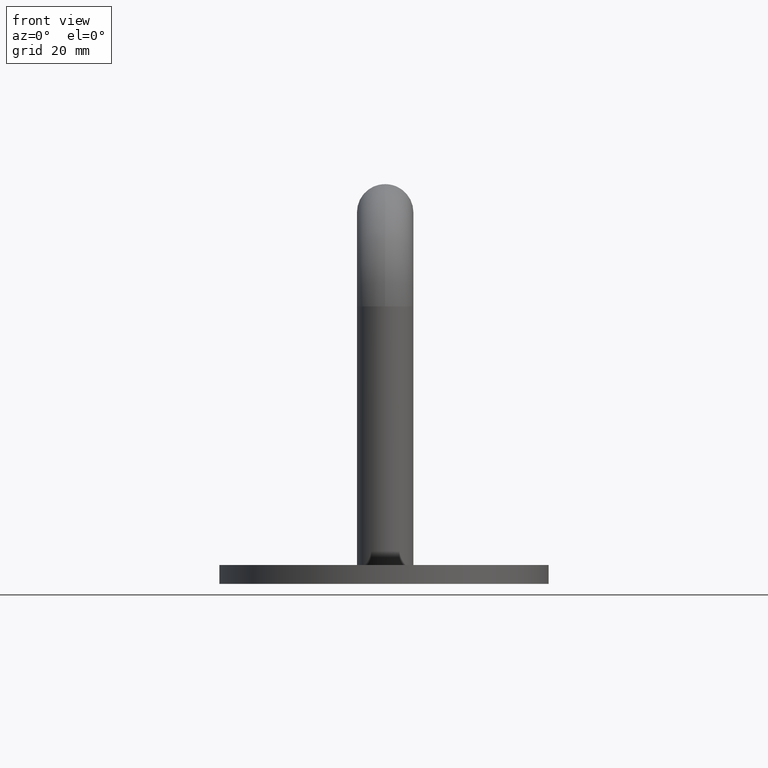
[diagram: clean part render]
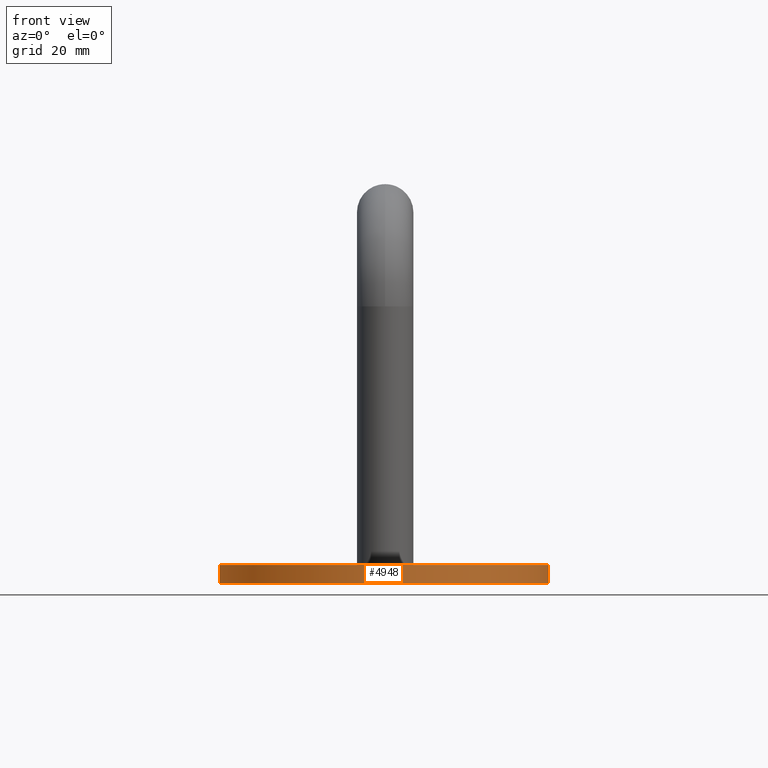
[diagram: same view with one face highlighted and labeled with its STEP entity id]
A machine part, front view. The second image highlights one B-rep face of the part: STEP entity #4948.
In plain terms, the highlighted cylindrical surface (partial cylindrical patch) has radius 35 mm, axis along (-0, -0, -1).
Its self-contained STEP definition (entity closure, byte-faithful):
#84 = CIRCLE ( 'NONE', #12528, 35.00000000000000700 ) ;
#282 = CARTESIAN_POINT ( 'NONE',  ( -35.25000000000004300, 0.0000000000000000000, 0.0000000000000000000 ) ) ;
#1248 = AXIS2_PLACEMENT_3D ( 'NONE', #12040, #8501, #10740 ) ;
#1822 = ORIENTED_EDGE ( 'NONE', *, *, #8297, .F. ) ;
#1907 = EDGE_LOOP ( 'NONE', ( #1822, #13810, #10155, #1982 ) ) ;
#1928 = DIRECTION ( 'NONE',  ( 0.0000000000000000000, 0.0000000000000000000, 1.000000000000000000 ) ) ;
#1982 = ORIENTED_EDGE ( 'NONE', *, *, #7634, .T. ) ;
#2017 = DIRECTION ( 'NONE',  ( -1.000000000000000000, 0.0000000000000000000, 0.0000000000000000000 ) ) ;
#2135 = CARTESIAN_POINT ( 'NONE',  ( -35.25000000000004300, 0.0000000000000000000, 4.000000000000000000 ) ) ;
#2532 = LINE ( 'NONE', #2135, #11554 ) ;
#3499 = AXIS2_PLACEMENT_3D ( 'NONE', #11141, #12114, #2017 ) ;
#3955 = FACE_OUTER_BOUND ( 'NONE', #1907, .T. ) ;
#4875 = CARTESIAN_POINT ( 'NONE',  ( 34.74999999999997900, 4.286263797015737300E-015, 0.0000000000000000000 ) ) ;
#4948 = ADVANCED_FACE ( 'NONE', ( #3955 ), #13528, .T. ) ;
#6420 = DIRECTION ( 'NONE',  ( 1.000000000000000000, 0.0000000000000000000, 0.0000000000000000000 ) ) ;
#7505 = VERTEX_POINT ( 'NONE', #4875 ) ;
#7634 = EDGE_CURVE ( 'NONE', #10209, #7505, #84, .T. ) ;
#8297 = EDGE_CURVE ( 'NONE', #12734, #7505, #13880, .T. ) ;
#8402 = CARTESIAN_POINT ( 'NONE',  ( 34.74999999999997900, 4.286263797015737300E-015, 4.000000000000000000 ) ) ;
#8501 = DIRECTION ( 'NONE',  ( 0.0000000000000000000, 0.0000000000000000000, 1.000000000000000000 ) ) ;
#8676 = CARTESIAN_POINT ( 'NONE',  ( -0.2500000000000349200, 0.0000000000000000000, 0.0000000000000000000 ) ) ;
#9142 = EDGE_CURVE ( 'NONE', #9540, #12734, #10821, .T. ) ;
#9421 = EDGE_CURVE ( 'NONE', #9540, #10209, #2532, .T. ) ;
#9540 = VERTEX_POINT ( 'NONE', #12786 ) ;
#10155 = ORIENTED_EDGE ( 'NONE', *, *, #9421, .T. ) ;
#10209 = VERTEX_POINT ( 'NONE', #282 ) ;
#10740 = DIRECTION ( 'NONE',  ( 1.000000000000000000, 0.0000000000000000000, 0.0000000000000000000 ) ) ;
#10821 = CIRCLE ( 'NONE', #1248, 35.00000000000000700 ) ;
#11141 = CARTESIAN_POINT ( 'NONE',  ( -0.2500000000000349200, 0.0000000000000000000, 4.000000000000000000 ) ) ;
#11554 = VECTOR ( 'NONE', #12388, 1000.000000000000000 ) ;
#12040 = CARTESIAN_POINT ( 'NONE',  ( -0.2500000000000349200, 0.0000000000000000000, 4.000000000000000000 ) ) ;
#12089 = VECTOR ( 'NONE', #13342, 1000.000000000000000 ) ;
#12114 = DIRECTION ( 'NONE',  ( -0.0000000000000000000, -0.0000000000000000000, -1.000000000000000000 ) ) ;
#12367 = CARTESIAN_POINT ( 'NONE',  ( 34.74999999999997900, 4.286263797015737300E-015, 4.000000000000000000 ) ) ;
#12388 = DIRECTION ( 'NONE',  ( -0.0000000000000000000, -0.0000000000000000000, -1.000000000000000000 ) ) ;
#12528 = AXIS2_PLACEMENT_3D ( 'NONE', #8676, #1928, #6420 ) ;
#12734 = VERTEX_POINT ( 'NONE', #8402 ) ;
#12786 = CARTESIAN_POINT ( 'NONE',  ( -35.25000000000004300, 0.0000000000000000000, 4.000000000000000000 ) ) ;
#13342 = DIRECTION ( 'NONE',  ( -0.0000000000000000000, -0.0000000000000000000, -1.000000000000000000 ) ) ;
#13528 = CYLINDRICAL_SURFACE ( 'NONE', #3499, 35.00000000000000700 ) ;
#13810 = ORIENTED_EDGE ( 'NONE', *, *, #9142, .F. ) ;
#13880 = LINE ( 'NONE', #12367, #12089 ) ;